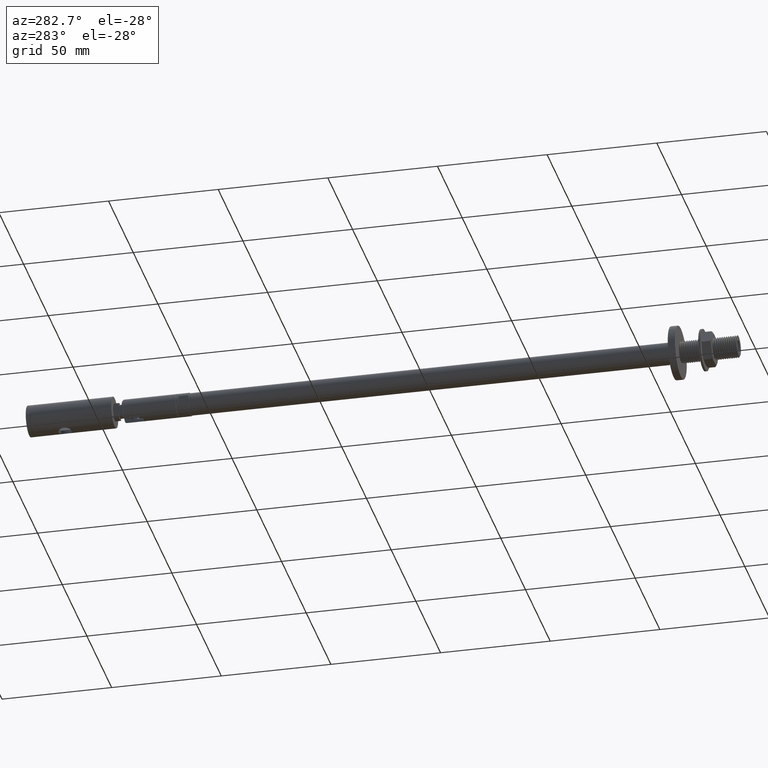
[diagram: clean part render]
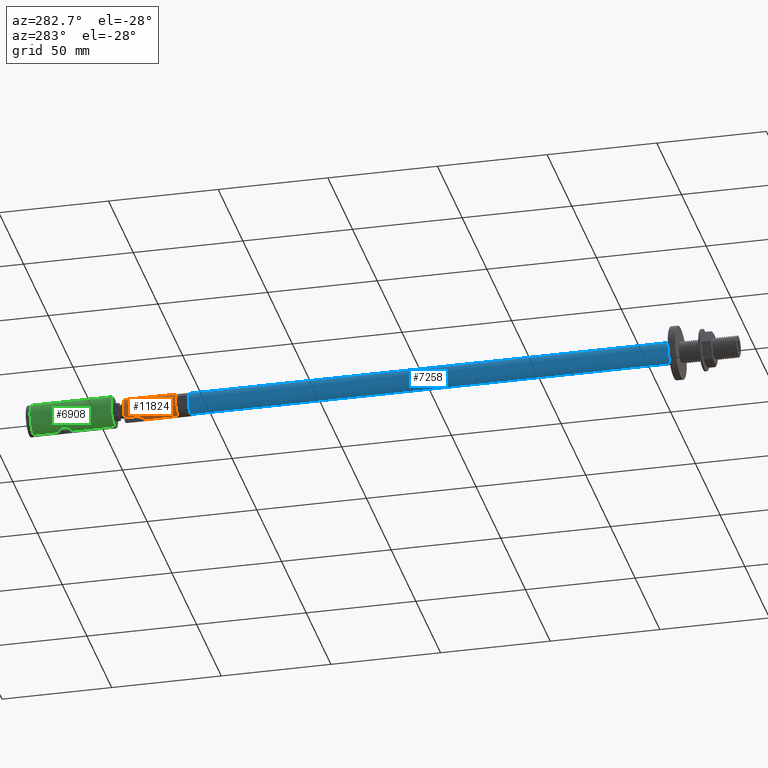
[diagram: same view with three faces highlighted in distinct colors, each labeled with its STEP entity id]
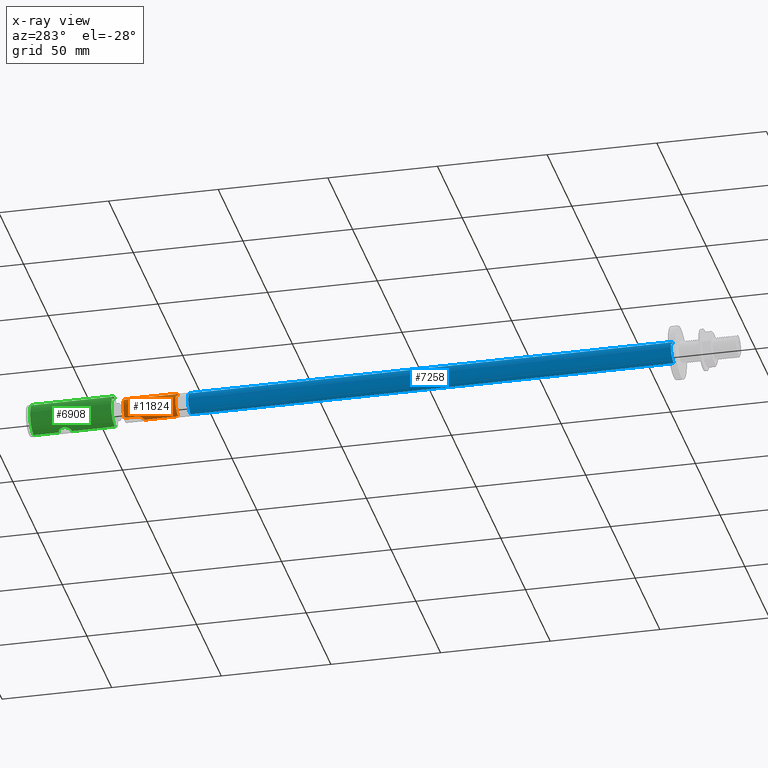
[diagram: x-ray of the same camera — body ghosted, the three highlighted faces saturated]
A machine part, auxiliary view with three faces highlighted in distinct colors.
The next image is the same camera in x-ray (body ghosted, the three faces saturated) — at least one of them is partly hidden behind the body in this view.
Their STEP definitions:

[orange] entity #11824 — the highlighted cylindrical surface (edge-blend (fillet) strip) has radius 5.25 mm, axis along (0, -1, 0).
#99 = AXIS2_PLACEMENT_3D ( 'NONE', #6288, #7679, #18185 ) ;
#105 = CYLINDRICAL_SURFACE ( 'NONE', #99, 5.250000000000000000 ) ;
#199 = CARTESIAN_POINT ( 'NONE',  ( 0.000000000000000000, 0.000000000000000000, 0.000000000000000000 ) ) ;
#319 = EDGE_CURVE ( 'NONE', #909, #7393, #19594, .T. ) ;
#909 = VERTEX_POINT ( 'NONE', #1928 ) ;
#957 = VECTOR ( 'NONE', #3979, 1000.000000000000000 ) ;
#1792 = DIRECTION ( 'NONE',  ( -0.000000000000000000, -1.000000000000000000, -0.000000000000000000 ) ) ;
#1838 = CARTESIAN_POINT ( 'NONE',  ( -1.613678890258018284E-14, 15.49999999999979750, -5.250000000000097700 ) ) ;
#1928 = CARTESIAN_POINT ( 'NONE',  ( 2.500000000000000000, 18.00000000000000355, -4.616546328154846890 ) ) ;
#2014 = DIRECTION ( 'NONE',  ( 0.000000000000000000, 0.000000000000000000, -1.000000000000000000 ) ) ;
#2058 = ORIENTED_EDGE ( 'NONE', *, *, #9982, .F. ) ;
#2785 = ORIENTED_EDGE ( 'NONE', *, *, #16289, .F. ) ;
#3102 = CARTESIAN_POINT ( 'NONE',  ( 0.8151067300644427860, 15.63100235307662444, -5.188591470474663403 ) ) ;
#3382 = VECTOR ( 'NONE', #19746, 1000.000000000000000 ) ;
#3645 = CARTESIAN_POINT ( 'NONE',  ( 2.165816367958615540, 16.74080201229311982, 4.783455315793009532 ) ) ;
#3979 = DIRECTION ( 'NONE',  ( -0.000000000000000000, -1.000000000000000000, -0.000000000000000000 ) ) ;
#4063 = LINE ( 'NONE', #14650, #12278 ) ;
#4353 = EDGE_CURVE ( 'NONE', #18083, #5447, #16254, .T. ) ;
#4385 = LINE ( 'NONE', #11958, #957 ) ;
#4490 = ORIENTED_EDGE ( 'NONE', *, *, #9773, .F. ) ;
#4848 = CARTESIAN_POINT ( 'NONE',  ( 2.368878950514955672, 17.18446805617675821, -4.685706966717122945 ) ) ;
#5243 = FACE_OUTER_BOUND ( 'NONE', #18208, .T. ) ;
#5342 = CARTESIAN_POINT ( 'NONE',  ( 0.3338287829934685202, 15.51691886013714416, 5.241885258748662402 ) ) ;
#5355 = CARTESIAN_POINT ( 'NONE',  ( -1.613678890258018284E-14, 15.49999999999979750, -5.250000000000097700 ) ) ;
#5403 = CARTESIAN_POINT ( 'NONE',  ( 0.6567444101646371379, 15.58218685932617831, 5.211284822571005115 ) ) ;
#5447 = VERTEX_POINT ( 'NONE', #19571 ) ;
#5575 = CARTESIAN_POINT ( 'NONE',  ( 2.500000000000000000, 23.83932157195409829, 4.616546328154845114 ) ) ;
#5918 = ORIENTED_EDGE ( 'NONE', *, *, #4353, .F. ) ;
#6169 = CARTESIAN_POINT ( 'NONE',  ( 2.179500323050470367, 16.73252310625451855, -4.778287076176959580 ) ) ;
#6288 = CARTESIAN_POINT ( 'NONE',  ( 0.000000000000000000, 0.000000000000000000, 0.000000000000000000 ) ) ;
#6358 = VERTEX_POINT ( 'NONE', #5575 ) ;
#6516 = DIRECTION ( 'NONE',  ( 0.000000000000000000, 0.000000000000000000, -1.000000000000000000 ) ) ;
#6943 = CARTESIAN_POINT ( 'NONE',  ( 2.500000000000000000, 18.00000000000000355, 4.616546328154846002 ) ) ;
#7031 = VECTOR ( 'NONE', #9762, 1000.000000000000000 ) ;
#7393 = VERTEX_POINT ( 'NONE', #5355 ) ;
#7679 = DIRECTION ( 'NONE',  ( -0.000000000000000000, -1.000000000000000000, -0.000000000000000000 ) ) ;
#8025 = CARTESIAN_POINT ( 'NONE',  ( 1.994812396087481732, 16.45925613374403795, -4.862243207395563260 ) ) ;
#8093 = EDGE_CURVE ( 'NONE', #7393, #18083, #12074, .T. ) ;
#8246 = CARTESIAN_POINT ( 'NONE',  ( 2.500000000000000000, 17.66432951242871496, 4.616546328154848666 ) ) ;
#8377 = CARTESIAN_POINT ( 'NONE',  ( 1.261227532154441722, 15.83540080063006528, 5.098156673809597805 ) ) ;
#8451 = CARTESIAN_POINT ( 'NONE',  ( 0.1659745986307288868, 15.49999999999999645, 5.250000000000002665 ) ) ;
#8543 = EDGE_CURVE ( 'NONE', #9788, #6358, #10801, .T. ) ;
#8722 = ORIENTED_EDGE ( 'NONE', *, *, #8543, .T. ) ;
#9199 = CARTESIAN_POINT ( 'NONE',  ( 0.000000000000000000, 0.000000000000000000, -5.250000000000000000 ) ) ;
#9426 = CARTESIAN_POINT ( 'NONE',  ( 2.500000000000000000, 18.00000000000000355, -4.616546328154846890 ) ) ;
#9634 = CARTESIAN_POINT ( 'NONE',  ( 1.528575883139089209, 16.01506904413875532, -5.024500366707600918 ) ) ;
#9762 = DIRECTION ( 'NONE',  ( 0.000000000000000000, 1.000000000000000000, 0.000000000000000000 ) ) ;
#9773 = EDGE_CURVE ( 'NONE', #19920, #6358, #18288, .T. ) ;
#9788 = VERTEX_POINT ( 'NONE', #11322 ) ;
#9982 = EDGE_CURVE ( 'NONE', #9788, #909, #4063, .T. ) ;
#10801 = CIRCLE ( 'NONE', #14758, 5.250000000000000000 ) ;
#10977 = CARTESIAN_POINT ( 'NONE',  ( 1.258286830783309496, 15.83361836660112942, -5.098907963185506986 ) ) ;
#11184 = CARTESIAN_POINT ( 'NONE',  ( 2.418114702682478523, 17.34436737528248784, -4.660104801090865223 ) ) ;
#11322 = CARTESIAN_POINT ( 'NONE',  ( 2.500000000000000000, 23.83932157195409829, -4.616546328154846890 ) ) ;
#11824 = ADVANCED_FACE ( 'NONE', ( #5243 ), #105, .T. ) ;
#11958 = CARTESIAN_POINT ( 'NONE',  ( 6.429395695523604153E-16, 0.000000000000000000, 5.250000000000000000 ) ) ;
#12074 = LINE ( 'NONE', #19885, #3382 ) ;
#12278 = VECTOR ( 'NONE', #16343, 1000.000000000000000 ) ;
#12525 = CARTESIAN_POINT ( 'NONE',  ( 1.677972847537197759E-14, 15.49999999999979750, 5.250000000000097700 ) ) ;
#12924 = CARTESIAN_POINT ( 'NONE',  ( 2.500000000000000000, 0.000000000000000000, 4.616546328154846890 ) ) ;
#13212 = CARTESIAN_POINT ( 'NONE',  ( 0.8151336509130147068, 15.63090135091483823, 5.188630603969603960 ) ) ;
#13298 = DIRECTION ( 'NONE',  ( -0.000000000000000000, -1.000000000000000000, -0.000000000000000000 ) ) ;
#14070 = AXIS2_PLACEMENT_3D ( 'NONE', #199, #1792, #6516 ) ;
#14620 = CARTESIAN_POINT ( 'NONE',  ( 0.000000000000000000, 23.83932157195409829, 0.000000000000000000 ) ) ;
#14650 = CARTESIAN_POINT ( 'NONE',  ( 2.500000000000000000, 0.000000000000000000, -4.616546328154846890 ) ) ;
#14758 = AXIS2_PLACEMENT_3D ( 'NONE', #14620, #13298, #2014 ) ;
#14814 = CARTESIAN_POINT ( 'NONE',  ( 2.430951096071722439, 17.33257951571435740, 4.655363032725009731 ) ) ;
#14892 = CARTESIAN_POINT ( 'NONE',  ( 1.677972847537197759E-14, 15.49999999999979750, 5.250000000000097700 ) ) ;
#15444 = ORIENTED_EDGE ( 'NONE', *, *, #19709, .T. ) ;
#15743 = CARTESIAN_POINT ( 'NONE',  ( 2.483233616016456757, 17.66730845786378623, -4.625733053340319145 ) ) ;
#16067 = CARTESIAN_POINT ( 'NONE',  ( 0.1662795000049626659, 15.50000000000000000, -5.250000000000007105 ) ) ;
#16125 = B_SPLINE_CURVE_WITH_KNOTS ( 'NONE', 3,
 ( #14892, #8451, #5342, #5403, #13212, #16368, #8377, #16582, #19684, #17826, #16509, #3645, #17902, #14814, #8246, #6943 ),
 .UNSPECIFIED., .F., .F.,
 ( 4, 2, 2, 2, 2, 2, 2, 4 ),
 ( 0.003970324129842920172, 0.004465704614106298827, 0.004961085098369677482, 0.005456465582633057004, 0.005951846066896435659, 0.006447226551159814315, 0.006942607035423193837, 0.007933368003949940739 ),
 .UNSPECIFIED. ) ;
#16254 = CIRCLE ( 'NONE', #14070, 5.250000000000000000 ) ;
#16264 = CARTESIAN_POINT ( 'NONE',  ( 0.3304850069742944485, 15.51642498996066344, -5.242119398040792966 ) ) ;
#16289 = EDGE_CURVE ( 'NONE', #20240, #19920, #16125, .T. ) ;
#16343 = DIRECTION ( 'NONE',  ( -0.000000000000000000, -1.000000000000000000, -0.000000000000000000 ) ) ;
#16368 = CARTESIAN_POINT ( 'NONE',  ( 1.118594795608481185, 15.75816660717493534, 5.131771243590110387 ) ) ;
#16509 = CARTESIAN_POINT ( 'NONE',  ( 1.984833185350453721, 16.47134786877652601, 4.861341638296718060 ) ) ;
#16582 = CARTESIAN_POINT ( 'NONE',  ( 1.529748948192002800, 16.01605122614449428, 5.024118282254032231 ) ) ;
#17337 = CARTESIAN_POINT ( 'NONE',  ( 1.115705029839307416, 15.75684349210402679, -5.132356448578963004 ) ) ;
#17499 = CARTESIAN_POINT ( 'NONE',  ( 2.500000000000000000, 18.00000000000000355, 4.616546328154846002 ) ) ;
#17535 = CARTESIAN_POINT ( 'NONE',  ( 2.500000000000000000, 17.83194487790412452, -4.616546328154848666 ) ) ;
#17826 = CARTESIAN_POINT ( 'NONE',  ( 1.882863460808047451, 16.34754569400186597, 4.902228022416181830 ) ) ;
#17902 = CARTESIAN_POINT ( 'NONE',  ( 2.243116609133355865, 16.88435166319571223, 4.747187054174164977 ) ) ;
#18083 = VERTEX_POINT ( 'NONE', #9199 ) ;
#18185 = DIRECTION ( 'NONE',  ( 0.000000000000000000, 0.000000000000000000, -1.000000000000000000 ) ) ;
#18208 = EDGE_LOOP ( 'NONE', ( #2785, #15444, #5918, #19679, #20264, #2058, #8722, #4490 ) ) ;
#18288 = LINE ( 'NONE', #12924, #7031 ) ;
#19248 = CARTESIAN_POINT ( 'NONE',  ( 1.654113697175781494, 16.11859097587396406, -4.984070048933660679 ) ) ;
#19571 = CARTESIAN_POINT ( 'NONE',  ( 6.429395695523604153E-16, 0.000000000000000000, 5.250000000000000000 ) ) ;
#19583 = CARTESIAN_POINT ( 'NONE',  ( 0.6548455624073586945, 15.58162400364994760, -5.211546163332502424 ) ) ;
#19594 = B_SPLINE_CURVE_WITH_KNOTS ( 'NONE', 3,
 ( #9426, #17535, #15743, #11184, #4848, #6169, #8025, #19248, #9634, #10977, #17337, #3102, #19583, #16264, #16067, #1838 ),
 .UNSPECIFIED., .F., .F.,
 ( 4, 2, 2, 2, 2, 2, 2, 4 ),
 ( 0.000000000000000000, 0.0004962905162303633952, 0.0009925810324607267903, 0.001985162064921462254, 0.002481452581151826191, 0.002977743097382190996, 0.003474033613612554933, 0.003970324129842919304 ),
 .UNSPECIFIED. ) ;
#19679 = ORIENTED_EDGE ( 'NONE', *, *, #8093, .F. ) ;
#19684 = CARTESIAN_POINT ( 'NONE',  ( 1.656009651057984255, 16.12026276276160885, 4.983437210541667994 ) ) ;
#19709 = EDGE_CURVE ( 'NONE', #20240, #5447, #4385, .T. ) ;
#19746 = DIRECTION ( 'NONE',  ( -0.000000000000000000, -1.000000000000000000, -0.000000000000000000 ) ) ;
#19885 = CARTESIAN_POINT ( 'NONE',  ( 0.000000000000000000, 0.000000000000000000, -5.250000000000000000 ) ) ;
#19920 = VERTEX_POINT ( 'NONE', #17499 ) ;
#20240 = VERTEX_POINT ( 'NONE', #12525 ) ;
#20264 = ORIENTED_EDGE ( 'NONE', *, *, #319, .F. ) ;

[blue] entity #7258 — the highlighted cylindrical surface (edge-blend (fillet) strip) has radius 5 mm, axis along (-0, -1, -0).
#1198 = CARTESIAN_POINT ( 'NONE',  ( -2.071850218092325058, 29.66291918680576245, -4.999675845005957520 ) ) ;
#1264 = CARTESIAN_POINT ( 'NONE',  ( 4.115914118402239374E-14, 29.60039557407870703, -4.999999999999997335 ) ) ;
#1301 = LINE ( 'NONE', #10382, #17932 ) ;
#1328 = CARTESIAN_POINT ( 'NONE',  ( -4.029143480546926570E-14, 30.10039557407870348, 4.999999999999998224 ) ) ;
#2829 = CARTESIAN_POINT ( 'NONE',  ( -3.536087125323266189, 29.72541918680575890, -3.534980599964169912 ) ) ;
#3020 = VERTEX_POINT ( 'NONE', #5392 ) ;
#3076 =( BOUNDED_CURVE ( )  B_SPLINE_CURVE ( 2, ( #1264, #13789, #20259, #1198, #2829, #14136, #18907, #12530, #17218, #17281, #1328 ),
 .UNSPECIFIED., .F., .F. ) 
 B_SPLINE_CURVE_WITH_KNOTS ( ( 3, 2, 2, 2, 2, 3 ),
 ( 0.9556443368707843167, 0.9556451612903226200, 0.9596774193548387455, 0.9637096774193548709, 0.9677419354838709964, 0.9717733691288488185 ),
 .UNSPECIFIED. ) 
 CURVE ( )  GEOMETRIC_REPRESENTATION_ITEM ( )  RATIONAL_B_SPLINE_CURVE ( ( 0.9999688797844887844, 0.9999844367102357356, 1.000000000000000000, 0.9238795325112867385, 1.000000000000000000, 0.9238795325112867385, 1.000000000000000000, 0.9238795325112867385, 1.000000000000000000, 0.9238950958010510028, 0.9999688797844887844 ) ) 
 REPRESENTATION_ITEM ( '' )  );
#3481 = VERTEX_POINT ( 'NONE', #19930 ) ;
#4617 = AXIS2_PLACEMENT_3D ( 'NONE', #5149, #19219, #14906 ) ;
#4810 = CARTESIAN_POINT ( 'NONE',  ( -4.029143480546926570E-14, 30.10039557407870348, 4.999999999999998224 ) ) ;
#5149 = CARTESIAN_POINT ( 'NONE',  ( 0.000000000000000000, 250.0000000000000000, 0.000000000000000000 ) ) ;
#5251 = CARTESIAN_POINT ( 'NONE',  ( 0.000000000000000000, 250.0000000000000000, 0.000000000000000000 ) ) ;
#5314 = ORIENTED_EDGE ( 'NONE', *, *, #14891, .T. ) ;
#5392 = CARTESIAN_POINT ( 'NONE',  ( 4.115914118402239374E-14, 29.60039557407870703, -4.999999999999997335 ) ) ;
#5705 = AXIS2_PLACEMENT_3D ( 'NONE', #5251, #6843, #14864 ) ;
#6843 = DIRECTION ( 'NONE',  ( 0.000000000000000000, 1.000000000000000000, 0.000000000000000000 ) ) ;
#6967 = DIRECTION ( 'NONE',  ( -0.000000000000000000, -1.000000000000000000, -0.000000000000000000 ) ) ;
#7258 = ADVANCED_FACE ( 'NONE', ( #16579 ), #15579, .T. ) ;
#7639 = EDGE_LOOP ( 'NONE', ( #11178, #16229, #5314, #14796 ) ) ;
#9742 = CIRCLE ( 'NONE', #5705, 5.000000000000000000 ) ;
#10081 = EDGE_CURVE ( 'NONE', #11922, #3481, #9742, .T. ) ;
#10382 = CARTESIAN_POINT ( 'NONE',  ( 6.123233995736766282E-16, 250.0000000000000000, 5.000000000000000000 ) ) ;
#10968 = CARTESIAN_POINT ( 'NONE',  ( 0.000000000000000000, 250.0000000000000000, -5.000000000000000000 ) ) ;
#11038 = EDGE_CURVE ( 'NONE', #3020, #20005, #3076, .T. ) ;
#11178 = ORIENTED_EDGE ( 'NONE', *, *, #15860, .F. ) ;
#11922 = VERTEX_POINT ( 'NONE', #10968 ) ;
#11950 = LINE ( 'NONE', #15940, #14438 ) ;
#12530 = CARTESIAN_POINT ( 'NONE',  ( -4.999675845005958408, 29.91291918680576245, 2.071850218092324614 ) ) ;
#13789 = CARTESIAN_POINT ( 'NONE',  ( -0.0003912157948608194040, 29.60040738082478740, -4.999999999999998224 ) ) ;
#14136 = CARTESIAN_POINT ( 'NONE',  ( -5.000324032554206433, 29.78791918680575890, -2.070285354922379639 ) ) ;
#14438 = VECTOR ( 'NONE', #17341, 1000.000000000000000 ) ;
#14796 = ORIENTED_EDGE ( 'NONE', *, *, #11038, .T. ) ;
#14864 = DIRECTION ( 'NONE',  ( 0.000000000000000000, 0.000000000000000000, 1.000000000000000000 ) ) ;
#14891 = EDGE_CURVE ( 'NONE', #11922, #3020, #11950, .T. ) ;
#14906 = DIRECTION ( 'NONE',  ( 0.000000000000000000, 0.000000000000000000, -1.000000000000000000 ) ) ;
#15579 = CYLINDRICAL_SURFACE ( 'NONE', #4617, 5.000000000000000000 ) ;
#15860 = EDGE_CURVE ( 'NONE', #3481, #20005, #1301, .T. ) ;
#15940 = CARTESIAN_POINT ( 'NONE',  ( 0.000000000000000000, 250.0000000000000000, -5.000000000000000000 ) ) ;
#16229 = ORIENTED_EDGE ( 'NONE', *, *, #10081, .F. ) ;
#16579 = FACE_OUTER_BOUND ( 'NONE', #7639, .T. ) ;
#17218 = CARTESIAN_POINT ( 'NONE',  ( -3.534980599964169024, 29.97541918680575534, 3.536087125323267077 ) ) ;
#17281 = CARTESIAN_POINT ( 'NONE',  ( -2.070609488905799545, 30.03790535568693798, 4.999999999999984013 ) ) ;
#17341 = DIRECTION ( 'NONE',  ( -0.000000000000000000, -1.000000000000000000, -0.000000000000000000 ) ) ;
#17932 = VECTOR ( 'NONE', #6967, 1000.000000000000000 ) ;
#18907 = CARTESIAN_POINT ( 'NONE',  ( -4.999999938780080200, 29.85041918680575534, 0.0007824315849723236091 ) ) ;
#19219 = DIRECTION ( 'NONE',  ( -0.000000000000000000, -1.000000000000000000, -0.000000000000000000 ) ) ;
#19930 = CARTESIAN_POINT ( 'NONE',  ( 6.123233995736766282E-16, 250.0000000000000000, 5.000000000000000000 ) ) ;
#20005 = VERTEX_POINT ( 'NONE', #4810 ) ;
#20259 = CARTESIAN_POINT ( 'NONE',  ( -0.0007824315849727572899, 29.60041918680575890, -4.999999938780080200 ) ) ;

[green] entity #6908 — the highlighted cylindrical surface (edge-blend (fillet) strip) has radius 7.1 mm, axis along (0, -1, 0).
#7 = CARTESIAN_POINT ( 'NONE',  ( 8.694992273946207746E-16, 37.00000000000000000, 7.099999999999999645 ) ) ;
#188 = CARTESIAN_POINT ( 'NONE',  ( 1.340849792831905418, 19.80902746039117801, 6.974697210867278230 ) ) ;
#446 = EDGE_CURVE ( 'NONE', #11156, #2600, #548, .T. ) ;
#461 = CARTESIAN_POINT ( 'NONE',  ( 2.844128967320125767, 21.52587439051566065, 6.505963474703126082 ) ) ;
#548 = B_SPLINE_CURVE_WITH_KNOTS ( 'NONE', 3,
 ( #17734, #11395, #17877, #6631, #8229, #188, #9830, #11467, #1975, #13054, #11253, #14651, #5111, #461, #13116, #3619, #14865, #3965 ),
 .UNSPECIFIED., .F., .F.,
 ( 4, 2, 2, 2, 2, 2, 2, 2, 4 ),
 ( 0.004747439988553787439, 0.005340465846081414968, 0.005933491703609042496, 0.006526517561136670025, 0.007119543418664297553, 0.007712569276191925949, 0.008305595133719555212, 0.008898620991247184475, 0.009491646848774812004 ),
 .UNSPECIFIED. ) ;
#550 = CARTESIAN_POINT ( 'NONE',  ( 0.3989828876249936762, 25.47992316978853111, 7.091451037932945844 ) ) ;
#606 = ORIENTED_EDGE ( 'NONE', *, *, #16122, .T. ) ;
#1454 = CARTESIAN_POINT ( 'NONE',  ( 8.585082295048045420E-14, 19.49999999999903721, 7.100000000000405542 ) ) ;
#1584 = CIRCLE ( 'NONE', #8846, 7.099999999999999645 ) ;
#1754 = LINE ( 'NONE', #3056, #2751 ) ;
#1975 = CARTESIAN_POINT ( 'NONE',  ( 1.987428872961260362, 20.24441394899586655, 6.817674530400751998 ) ) ;
#2122 = CARTESIAN_POINT ( 'NONE',  ( 8.694973479455262678E-16, 25.50000000000000000, 7.099999999999999645 ) ) ;
#2510 = CARTESIAN_POINT ( 'NONE',  ( 0.000000000000000000, 0.000000000000000000, -7.099999999999999645 ) ) ;
#2525 = VERTEX_POINT ( 'NONE', #20058 ) ;
#2565 = DIRECTION ( 'NONE',  ( -0.000000000000000000, -1.000000000000000000, -0.000000000000000000 ) ) ;
#2600 = VERTEX_POINT ( 'NONE', #7972 ) ;
#2751 = VECTOR ( 'NONE', #14278, 1000.000000000000000 ) ;
#3056 = CARTESIAN_POINT ( 'NONE',  ( 8.694992273946207746E-16, 37.00000000000000000, 7.099999999999999645 ) ) ;
#3523 = VERTEX_POINT ( 'NONE', #2510 ) ;
#3619 = CARTESIAN_POINT ( 'NONE',  ( 2.980547961633642551, 22.10478314524338828, 6.444237821782514253 ) ) ;
#3637 = CARTESIAN_POINT ( 'NONE',  ( 2.258509681926367474, 24.48421988188502141, 6.732756160058656292 ) ) ;
#3849 = CARTESIAN_POINT ( 'NONE',  ( 1.511118548280472984, 25.09888087318626404, 6.939308667577108736 ) ) ;
#3965 = CARTESIAN_POINT ( 'NONE',  ( 3.000000000000000000, 22.50000000000000000, 6.435060217278467221 ) ) ;
#4399 = VERTEX_POINT ( 'NONE', #19532 ) ;
#4565 = AXIS2_PLACEMENT_3D ( 'NONE', #15169, #16649, #16790 ) ;
#4660 = ORIENTED_EDGE ( 'NONE', *, *, #8894, .F. ) ;
#4753 = CIRCLE ( 'NONE', #4565, 7.099999999999999645 ) ;
#4986 = LINE ( 'NONE', #20293, #15207 ) ;
#5030 = EDGE_CURVE ( 'NONE', #4399, #3523, #14248, .T. ) ;
#5111 = CARTESIAN_POINT ( 'NONE',  ( 2.694172494683581220, 21.16604915581829260, 6.569479803288162501 ) ) ;
#5200 = CARTESIAN_POINT ( 'NONE',  ( 3.000000000000000000, 22.50000000000000000, 6.435060217278467221 ) ) ;
#5385 = VERTEX_POINT ( 'NONE', #17724 ) ;
#6631 = CARTESIAN_POINT ( 'NONE',  ( 0.7865576625245345177, 19.59822711239887738, 7.058967796944854101 ) ) ;
#6908 = ADVANCED_FACE ( 'NONE', ( #9739 ), #16496, .T. ) ;
#6918 = EDGE_CURVE ( 'NONE', #5385, #3523, #1584, .T. ) ;
#7244 = EDGE_LOOP ( 'NONE', ( #9974, #14000, #4660, #17662, #606, #12747, #18603 ) ) ;
#7943 = VERTEX_POINT ( 'NONE', #7 ) ;
#7972 = CARTESIAN_POINT ( 'NONE',  ( 3.000000000000000000, 22.50000000000000000, 6.435060217278467221 ) ) ;
#8229 = CARTESIAN_POINT ( 'NONE',  ( 0.9755160167846920194, 19.65613293614791957, 7.035101125869740457 ) ) ;
#8299 = CARTESIAN_POINT ( 'NONE',  ( 0.7868030744048416514, 25.40173575029966813, 7.058952194917098133 ) ) ;
#8518 = CARTESIAN_POINT ( 'NONE',  ( 2.844145179398423817, 23.47442650793665209, 6.505967100633213818 ) ) ;
#8738 = CARTESIAN_POINT ( 'NONE',  ( 0.000000000000000000, 37.00000000000000000, -7.099999999999999645 ) ) ;
#8794 = DIRECTION ( 'NONE',  ( 0.000000000000000000, 0.000000000000000000, -1.000000000000000000 ) ) ;
#8846 = AXIS2_PLACEMENT_3D ( 'NONE', #20313, #18402, #12036 ) ;
#8857 = B_SPLINE_CURVE_WITH_KNOTS ( 'NONE', 3,
 ( #5200, #17968, #9923, #18103, #8518, #10128, #13133, #16282, #3637, #14742, #19597, #3849, #17891, #9989, #8299, #550, #13342, #2122 ),
 .UNSPECIFIED., .F., .F.,
 ( 4, 2, 2, 2, 2, 2, 2, 2, 4 ),
 ( 0.009491646848774812004, 0.01008443774537058461, 0.01067722864196635896, 0.01127001953856213157, 0.01186281043515790418, 0.01245560133175367679, 0.01304839222834944940, 0.01364118312494522374, 0.01423397402154099635 ),
 .UNSPECIFIED. ) ;
#8894 = EDGE_CURVE ( 'NONE', #2600, #2525, #8857, .T. ) ;
#9739 = FACE_OUTER_BOUND ( 'NONE', #7244, .T. ) ;
#9830 = CARTESIAN_POINT ( 'NONE',  ( 1.512434376339522935, 19.90185559178099695, 6.939028477510833071 ) ) ;
#9923 = CARTESIAN_POINT ( 'NONE',  ( 2.980068518147415801, 22.89809614828250872, 6.444458158705960393 ) ) ;
#9974 = ORIENTED_EDGE ( 'NONE', *, *, #13197, .F. ) ;
#9989 = CARTESIAN_POINT ( 'NONE',  ( 0.9740992987866803343, 25.34421954118510811, 7.035252277008951616 ) ) ;
#10128 = CARTESIAN_POINT ( 'NONE',  ( 2.692612952367300583, 23.83734973346867037, 6.570129770770201105 ) ) ;
#11156 = VERTEX_POINT ( 'NONE', #1454 ) ;
#11253 = CARTESIAN_POINT ( 'NONE',  ( 2.383696919386890656, 20.66806438380191224, 6.688902655740064596 ) ) ;
#11395 = CARTESIAN_POINT ( 'NONE',  ( 0.1984522157890273031, 19.50000000000000711, 7.099999999999996092 ) ) ;
#11467 = CARTESIAN_POINT ( 'NONE',  ( 1.835181822025900189, 20.11884066287052519, 6.860734773662771069 ) ) ;
#12036 = DIRECTION ( 'NONE',  ( 0.000000000000000000, 0.000000000000000000, 1.000000000000000000 ) ) ;
#12251 = EDGE_CURVE ( 'NONE', #7943, #2525, #4986, .T. ) ;
#12295 = DIRECTION ( 'NONE',  ( -0.000000000000000000, -1.000000000000000000, -0.000000000000000000 ) ) ;
#12747 = ORIENTED_EDGE ( 'NONE', *, *, #6918, .T. ) ;
#13054 = CARTESIAN_POINT ( 'NONE',  ( 2.261064779109605904, 20.51880641449794140, 6.731875339920162737 ) ) ;
#13116 = CARTESIAN_POINT ( 'NONE',  ( 2.901888718799735312, 21.71329524115777332, 6.480039283753887602 ) ) ;
#13133 = CARTESIAN_POINT ( 'NONE',  ( 2.598831018127599091, 24.01118834276422831, 6.608282949236746084 ) ) ;
#13197 = EDGE_CURVE ( 'NONE', #7943, #4399, #4753, .T. ) ;
#13342 = CARTESIAN_POINT ( 'NONE',  ( 0.1978281913228112088, 25.50000000000000355, 7.100000000000001421 ) ) ;
#13713 = CARTESIAN_POINT ( 'NONE',  ( 0.000000000000000000, 37.00000000000000000, 0.000000000000000000 ) ) ;
#14000 = ORIENTED_EDGE ( 'NONE', *, *, #12251, .T. ) ;
#14248 = LINE ( 'NONE', #8738, #15986 ) ;
#14278 = DIRECTION ( 'NONE',  ( -0.000000000000000000, -1.000000000000000000, -0.000000000000000000 ) ) ;
#14651 = CARTESIAN_POINT ( 'NONE',  ( 2.600722614885552009, 20.99194131884317471, 6.607546566001929023 ) ) ;
#14742 = CARTESIAN_POINT ( 'NONE',  ( 1.982759490780828582, 24.75979187642170132, 6.819056847972560398 ) ) ;
#14865 = CARTESIAN_POINT ( 'NONE',  ( 2.999999999999999556, 22.30239316512210834, 6.435060217278466332 ) ) ;
#15169 = CARTESIAN_POINT ( 'NONE',  ( 0.000000000000000000, 37.00000000000000000, 0.000000000000000000 ) ) ;
#15207 = VECTOR ( 'NONE', #12295, 1000.000000000000000 ) ;
#15319 = DIRECTION ( 'NONE',  ( -0.000000000000000000, -1.000000000000000000, -0.000000000000000000 ) ) ;
#15986 = VECTOR ( 'NONE', #2565, 1000.000000000000000 ) ;
#16122 = EDGE_CURVE ( 'NONE', #11156, #5385, #1754, .T. ) ;
#16282 = CARTESIAN_POINT ( 'NONE',  ( 2.382625523843465931, 24.33322352189204807, 6.689276628387024637 ) ) ;
#16496 = CYLINDRICAL_SURFACE ( 'NONE', #17822, 7.099999999999999645 ) ;
#16649 = DIRECTION ( 'NONE',  ( 0.000000000000000000, 1.000000000000000000, 0.000000000000000000 ) ) ;
#16790 = DIRECTION ( 'NONE',  ( 0.000000000000000000, 0.000000000000000000, 1.000000000000000000 ) ) ;
#17662 = ORIENTED_EDGE ( 'NONE', *, *, #446, .F. ) ;
#17724 = CARTESIAN_POINT ( 'NONE',  ( 8.694992273946207746E-16, 0.000000000000000000, 7.099999999999999645 ) ) ;
#17734 = CARTESIAN_POINT ( 'NONE',  ( 8.585082295048045420E-14, 19.49999999999903721, 7.100000000000405542 ) ) ;
#17822 = AXIS2_PLACEMENT_3D ( 'NONE', #13713, #15319, #8794 ) ;
#17877 = CARTESIAN_POINT ( 'NONE',  ( 0.3995885792753123833, 19.52018661406361133, 7.091405240295699741 ) ) ;
#17891 = CARTESIAN_POINT ( 'NONE',  ( 1.336058326208114932, 25.19321413766635231, 6.975571101639371108 ) ) ;
#17968 = CARTESIAN_POINT ( 'NONE',  ( 2.999999999999998668, 22.69752854168802259, 6.435060217278465444 ) ) ;
#18103 = CARTESIAN_POINT ( 'NONE',  ( 2.901786092226174674, 23.28671874967705335, 6.480083858032076094 ) ) ;
#18402 = DIRECTION ( 'NONE',  ( 0.000000000000000000, 1.000000000000000000, 0.000000000000000000 ) ) ;
#18603 = ORIENTED_EDGE ( 'NONE', *, *, #5030, .F. ) ;
#19532 = CARTESIAN_POINT ( 'NONE',  ( 0.000000000000000000, 37.00000000000000000, -7.099999999999999645 ) ) ;
#19597 = CARTESIAN_POINT ( 'NONE',  ( 1.833357192667815605, 24.88253278341849750, 6.861216033252507174 ) ) ;
#20058 = CARTESIAN_POINT ( 'NONE',  ( 8.694973479455262678E-16, 25.50000000000000000, 7.099999999999999645 ) ) ;
#20293 = CARTESIAN_POINT ( 'NONE',  ( 8.694992273946207746E-16, 37.00000000000000000, 7.099999999999999645 ) ) ;
#20313 = CARTESIAN_POINT ( 'NONE',  ( 0.000000000000000000, 0.000000000000000000, 0.000000000000000000 ) ) ;